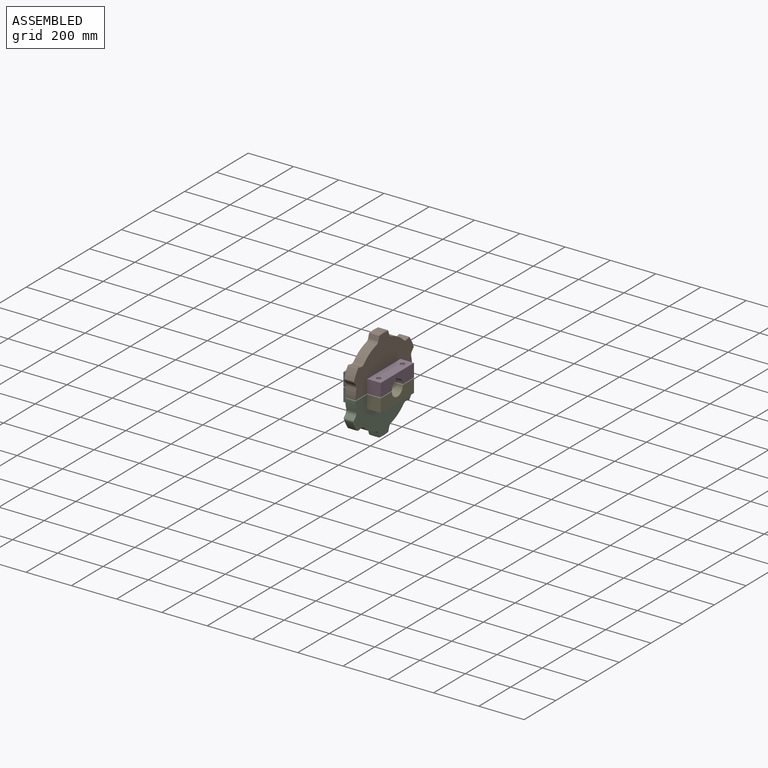
[diagram: assembled view]
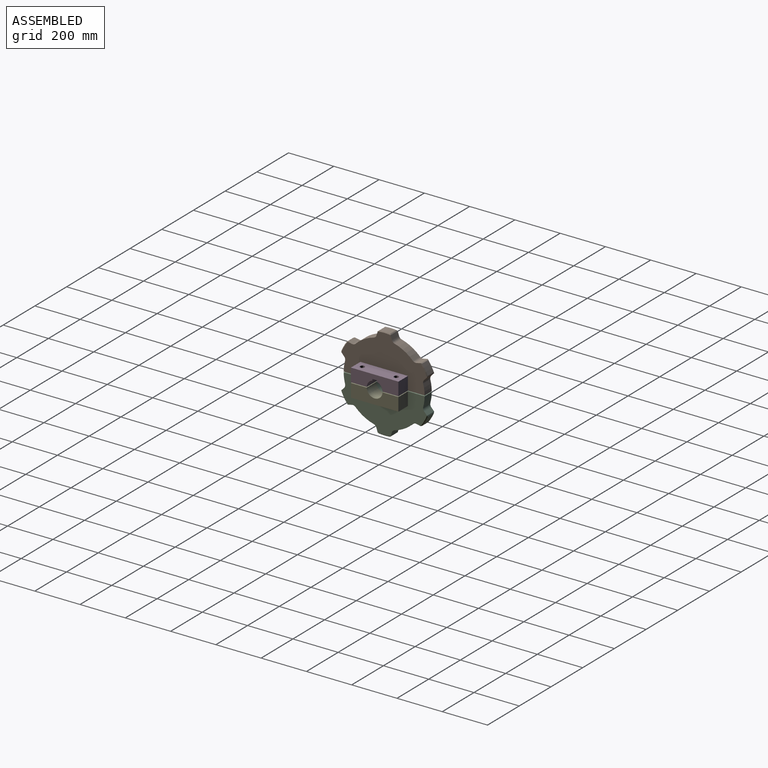
[diagram: assembled view, second angle]
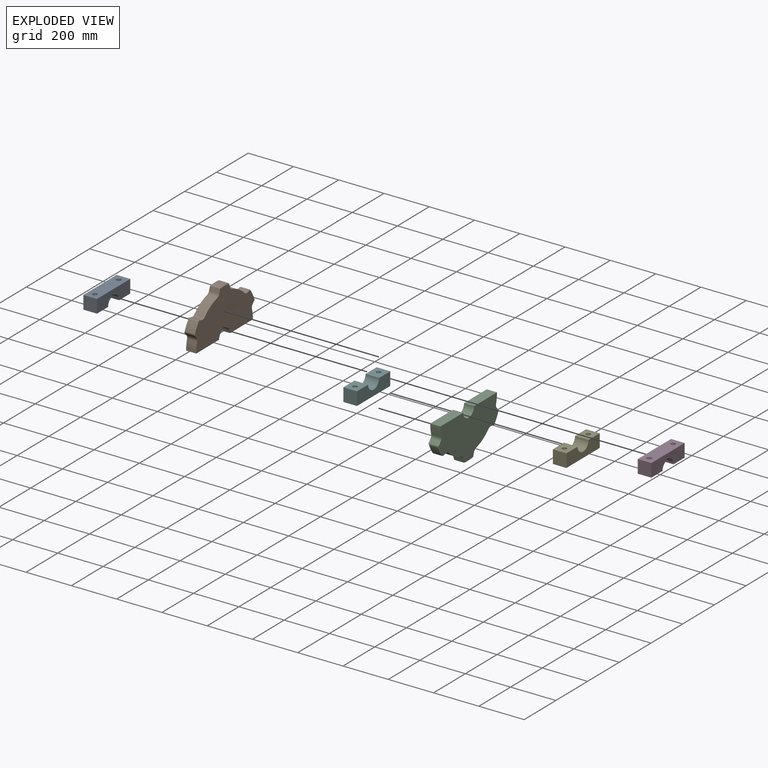
[diagram: exploded view]
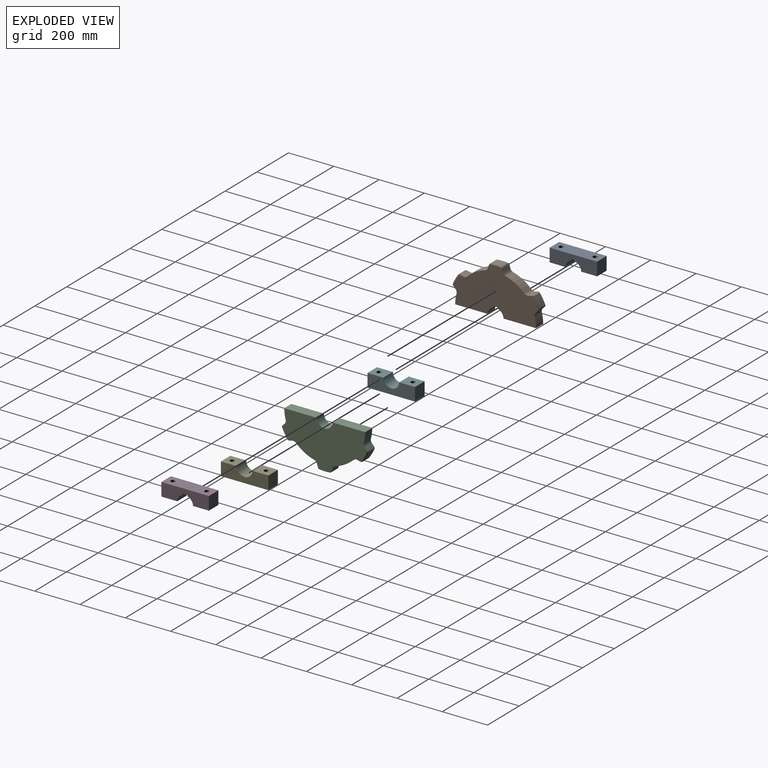
[diagram: exploded view, second angle]
ASSEMBLY  parts=6 mates=4
PART A: 14 faces, bbox 60x210x58.5 mm
  f0: plane 60x58.5mm, normal (0,-1,0), area 3510mm2, adj f1,f9,f10,f11
  f1: plane 70.03x60mm, normal (0,0,-1), area 3887.8mm2, adj f0,f2,f10,f11,f12
  f2: cylinder r=35mm len=60mm, axis (1,0,0), area 2600.2mm2, adj f1,f3,f10,f11
  f3: plane 60x6.36mm, normal (0,1,0), area 381.5mm2, adj f2,f4,f10,f11
  f4: plane 60x20mm, normal (0,0,-1), area 1200mm2, adj f3,f5,f10,f11
  f5: plane 60x6.36mm, normal (0,-1,0), area 381.5mm2, adj f4,f6,f10,f11
  f6: cylinder r=35mm len=60mm, axis (1,0,0), area 2600.2mm2, adj f5,f7,f10,f11
  f7: plane 70.03x60mm, normal (0,0,-1), area 3887.8mm2, adj f6,f8,f10,f11,f13
  f8: plane 60x58.5mm, normal (0,1,0), area 3510mm2, adj f7,f9,f10,f11
  f9: plane 210x60mm, normal (0,0,1), area 11971.7mm2, adj f0,f8,f10,f11,f12,f13
  f10: plane 210x58.5mm, normal (-1,0,0), area 10358.1mm2, adj f0,f1,f2,f3,f4,f5,f6,f7
  f11: plane 210x58.5mm, normal (1,0,0), area 10358.1mm2, adj f0,f1,f2,f3,f4,f5,f6,f7
  f12: cylinder r=10mm len=58.5mm, axis (0,0,1), area 3675.7mm2, adj f1,f9
  f13: cylinder r=10mm len=58.5mm, axis (0,0,1), area 3675.7mm2, adj f7,f9
PART B: 40 faces, bbox 45x384.1x205.6 mm
  f0: cylinder r=17.5mm len=45mm, axis (1,0,0), area 789.9mm2, adj f1,f25,f26,f27
  f1: cylinder r=178.78mm len=45mm, axis (1,0,0), area 2038.7mm2, adj f0,f2,f26,f27
  f2: plane 143.8x45mm, normal (0,0,-1), area 6471.1mm2, adj f1,f3,f26,f27
  f3: cylinder r=35mm len=45mm, axis (1,0,0), area 1950.1mm2, adj f2,f4,f26,f27
  f4: plane 45x6.36mm, normal (0,1,0), area 286.2mm2, adj f3,f5,f26,f27
  f5: plane 45x20mm, normal (0,0,-1), area 900mm2, adj f4,f6,f26,f27
  f6: plane 45x6.36mm, normal (0,-1,0), area 286.2mm2, adj f5,f7,f26,f27
  f7: cylinder r=35mm len=45mm, axis (1,0,0), area 1950.1mm2, adj f6,f8,f26,f27
  f8: plane 143.8x45mm, normal (0,0,-1), area 6471.1mm2, adj f7,f9,f26,f27
  f9: cylinder r=178.78mm len=45mm, axis (1,0,0), area 2038.7mm2, adj f8,f10,f26,f27
  f10: cylinder r=17.5mm len=45mm, axis (1,0,0), area 789.9mm2, adj f9,f11,f26,f27
  f11: plane 45x13.96mm, normal (0,0.74,-0.68), area 851.8mm2, adj f10,f26,f27,f29,f31,f34
  f12: cylinder r=207.09mm len=42.37mm, axis (1,0,0), area 1912.7mm2, adj f29,f31,f34,f35
  f13: plane 45x18.48mm, normal (0,-0.22,0.98), area 851.8mm2, adj f14,f26,f27,f29,f31,f35
  f14: cylinder r=17.5mm len=45mm, axis (1,0,0), area 789.9mm2, adj f13,f15,f26,f27
  f15: cylinder r=178.78mm len=80.14mm, axis (1,0,0), area 4212.3mm2, adj f14,f16,f26,f27
  f16: cylinder r=17.5mm len=45mm, axis (1,0,0), area 789.9mm2, adj f15,f17,f26,f27
  f17: plane 45x18.05mm, normal (0,0.95,0.3), area 851.8mm2, adj f16,f26,f27,f28,f32,f36
  f18: cylinder r=207.09mm len=48.93mm, axis (1,0,0), area 1912.7mm2, adj f28,f32,f36,f37
  f19: plane 45x18.05mm, normal (0,-0.95,0.3), area 851.8mm2, adj f20,f26,f27,f28,f32,f37
  f20: cylinder r=17.5mm len=45mm, axis (1,0,0), area 789.9mm2, adj f19,f21,f26,f27
  f21: cylinder r=178.78mm len=80.14mm, axis (1,0,0), area 4212.3mm2, adj f20,f22,f26,f27
  f22: cylinder r=17.5mm len=45mm, axis (1,0,0), area 789.9mm2, adj f21,f23,f26,f27
  f23: plane 45x18.48mm, normal (0,0.22,0.98), area 851.8mm2, adj f22,f26,f27,f30,f33,f39
  f24: cylinder r=207.09mm len=42.37mm, axis (1,0,0), area 1912.7mm2, adj f30,f33,f38,f39
  f25: plane 45x13.96mm, normal (0,-0.74,-0.68), area 851.8mm2, adj f0,f26,f27,f30,f33,f38
  f26: plane 378.53x202.59mm, normal (-1,0,0), area 52834.1mm2, adj f0,f1,f2,f3,f4,f5,f6,f7
  f27: plane 378.53x202.59mm, normal (1,0,0), area 52834.1mm2, adj f0,f1,f2,f3,f4,f5,f6,f7
  f28: cone r=207.09mm half-angle=45deg, axis (1,0,0), area 226.4mm2, adj f17,f18,f19,f26,f36,f37
  f29: cone r=207.09mm half-angle=45deg, axis (1,0,0), area 226.4mm2, adj f11,f12,f13,f26,f34,f35
  f30: cone r=207.09mm half-angle=45deg, axis (1,0,0), area 226.4mm2, adj f23,f24,f25,f26,f38,f39
  f31: cone r=204.09mm half-angle=45deg, axis (-1,0,0), area 226.4mm2, adj f11,f12,f13,f27,f34,f35
  f32: cone r=204.09mm half-angle=45deg, axis (-1,0,0), area 226.4mm2, adj f17,f18,f19,f27,f36,f37
  f33: cone r=204.09mm half-angle=45deg, axis (-1,0,0), area 226.4mm2, adj f23,f24,f25,f27,f38,f39
  f34: plane 44.47x5.05mm, normal (0,0.99,-0.17), area 213.9mm2, adj f11,f12,f29,f31
  f35: plane 44.47x4.8mm, normal (0,0.35,0.94), area 213.9mm2, adj f12,f13,f29,f31
  f36: plane 44.47x3.95mm, normal (0,0.64,0.77), area 213.9mm2, adj f17,f18,f28,f32
  f37: plane 44.47x3.95mm, normal (0,-0.64,0.77), area 213.9mm2, adj f18,f19,f28,f32
  f38: plane 44.47x5.05mm, normal (0,-0.99,-0.17), area 213.9mm2, adj f24,f25,f30,f33
  f39: plane 44.47x4.8mm, normal (0,-0.35,0.94), area 213.9mm2, adj f23,f24,f30,f33
PART C: 36 faces, bbox 45x384.1x205.6 mm
  f0: plane 45x18.05mm, normal (0,-0.95,-0.3), area 851.8mm2, adj f21,f22,f23,f25,f28,f32
  f1: cylinder r=207.09mm len=48.93mm, axis (1,0,0), area 1912.7mm2, adj f25,f28,f32,f33
  f2: plane 45x18.05mm, normal (0,0.95,-0.3), area 851.8mm2, adj f3,f22,f23,f25,f28,f33
  f3: cylinder r=17.5mm len=45mm, axis (1,0,0), area 789.9mm2, adj f2,f4,f22,f23
  f4: cylinder r=178.78mm len=80.14mm, axis (1,0,0), area 4212.3mm2, adj f3,f5,f22,f23
  f5: cylinder r=17.5mm len=45mm, axis (1,0,0), area 789.9mm2, adj f4,f6,f22,f23
  f6: plane 45x18.48mm, normal (0,-0.22,-0.98), area 851.8mm2, adj f5,f22,f23,f24,f29,f34
  f7: cylinder r=207.09mm len=42.37mm, axis (1,0,0), area 1912.7mm2, adj f24,f29,f34,f35
  f8: plane 45x13.96mm, normal (0,0.74,0.68), area 851.8mm2, adj f9,f22,f23,f24,f29,f35
  f9: cylinder r=17.5mm len=45mm, axis (1,0,0), area 789.9mm2, adj f8,f10,f22,f23
  f10: cylinder r=178.78mm len=45mm, axis (1,0,0), area 2038.7mm2, adj f9,f11,f22,f23
  f11: plane 143.8x45mm, normal (0,0,1), area 6471.1mm2, adj f10,f12,f22,f23
  f12: cylinder r=35mm len=69.94mm, axis (1,0,0), area 4813mm2, adj f11,f13,f22,f23
  f13: plane 143.8x45mm, normal (0,0,1), area 6471.1mm2, adj f12,f14,f22,f23
  f14: cylinder r=178.78mm len=45mm, axis (1,0,0), area 2038.7mm2, adj f13,f15,f22,f23
  f15: cylinder r=17.5mm len=45mm, axis (1,0,0), area 789.9mm2, adj f14,f16,f22,f23
  f16: plane 45x13.96mm, normal (0,-0.74,0.68), area 851.8mm2, adj f15,f22,f23,f26,f27,f30
  f17: cylinder r=207.09mm len=42.37mm, axis (1,0,0), area 1912.7mm2, adj f26,f27,f30,f31
  f18: plane 45x18.48mm, normal (0,0.22,-0.98), area 851.8mm2, adj f19,f22,f23,f26,f27,f31
  f19: cylinder r=17.5mm len=45mm, axis (1,0,0), area 789.9mm2, adj f18,f20,f22,f23
  f20: cylinder r=178.78mm len=80.14mm, axis (1,0,0), area 4212.3mm2, adj f19,f21,f22,f23
  f21: cylinder r=17.5mm len=45mm, axis (1,0,0), area 789.9mm2, adj f0,f20,f22,f23
  f22: plane 378.53x202.59mm, normal (-1,0,0), area 52941.7mm2, adj f0,f2,f3,f4,f5,f6,f8,f9
  f23: plane 378.53x202.59mm, normal (1,0,0), area 52941.7mm2, adj f0,f2,f3,f4,f5,f6,f8,f9
  f24: cone r=207.09mm half-angle=45deg, axis (1,0,0), area 226.4mm2, adj f6,f7,f8,f22,f34,f35
  f25: cone r=207.09mm half-angle=45deg, axis (1,0,0), area 226.4mm2, adj f0,f1,f2,f22,f32,f33
  f26: cone r=207.09mm half-angle=45deg, axis (1,0,0), area 226.4mm2, adj f16,f17,f18,f22,f30,f31
  f27: cone r=204.09mm half-angle=45deg, axis (-1,0,0), area 226.4mm2, adj f16,f17,f18,f23,f30,f31
  f28: cone r=204.09mm half-angle=45deg, axis (-1,0,0), area 226.4mm2, adj f0,f1,f2,f23,f32,f33
  f29: cone r=204.09mm half-angle=45deg, axis (-1,0,0), area 226.4mm2, adj f6,f7,f8,f23,f34,f35
  f30: plane 44.47x5.05mm, normal (0,-0.99,0.17), area 213.9mm2, adj f16,f17,f26,f27
  f31: plane 44.47x4.8mm, normal (0,-0.35,-0.94), area 213.9mm2, adj f17,f18,f26,f27
  f32: plane 44.47x3.95mm, normal (0,-0.64,-0.77), area 213.9mm2, adj f0,f1,f25,f28
  f33: plane 44.47x3.95mm, normal (0,0.64,-0.77), area 213.9mm2, adj f1,f2,f25,f28
  f34: plane 44.47x4.8mm, normal (0,0.35,-0.94), area 213.9mm2, adj f6,f7,f24,f29
  f35: plane 44.47x5.05mm, normal (0,0.99,0.17), area 213.9mm2, adj f7,f8,f24,f29
PART D: same geometry as A
PART E: 10 faces, bbox 60x210x58.5 mm
  f0: plane 60x58.5mm, normal (0,1,0), area 3510mm2, adj f1,f5,f6,f7
  f1: plane 70.03x60mm, normal (0,0,1), area 3887.8mm2, adj f0,f2,f6,f7,f9
  f2: cylinder r=35mm len=69.94mm, axis (1,0,0), area 6417.3mm2, adj f1,f3,f6,f7
  f3: plane 70.03x60mm, normal (0,0,1), area 3887.8mm2, adj f2,f4,f6,f7,f8
  f4: plane 60x58.5mm, normal (0,-1,0), area 3510mm2, adj f3,f5,f6,f7
  f5: plane 210x60mm, normal (0,0,-1), area 11971.7mm2, adj f0,f4,f6,f7,f8,f9
  f6: plane 210x58.5mm, normal (-1,0,0), area 10465.7mm2, adj f0,f1,f2,f3,f4,f5
  f7: plane 210x58.5mm, normal (1,0,0), area 10465.7mm2, adj f0,f1,f2,f3,f4,f5
  f8: cylinder r=10mm len=58.5mm, axis (0,0,1), area 3675.7mm2, adj f3,f5
  f9: cylinder r=10mm len=58.5mm, axis (0,0,1), area 3675.7mm2, adj f1,f5
PART F: same geometry as E
PLACE A t=(-43.92,1018.74,-366.15)mm
PLACE B t=(1.08,570.55,-366.15)mm
PLACE C t=(1.08,570.55,-366.15)mm
PLACE D t=(61.08,1018.74,-366.15)mm
PLACE E t=(61.08,1018.74,-366.15)mm
PLACE F t=(-43.92,1018.74,-366.15)mm
MATE parallel F.f2 <-> C.f1  axis (1,0,0) through (-43.92,-516.17,-23.56)mm
MATE parallel A.f2 <-> C.f1  axis (1,0,0) through (-43.92,-516.17,-23.56)mm
MATE parallel D.f2 <-> B.f1  axis (-1,0,0) through (1.08,-516.17,-23.56)mm
MATE parallel E.f2 <-> C.f1  axis (1,0,0) through (1.08,-516.17,-23.56)mm
